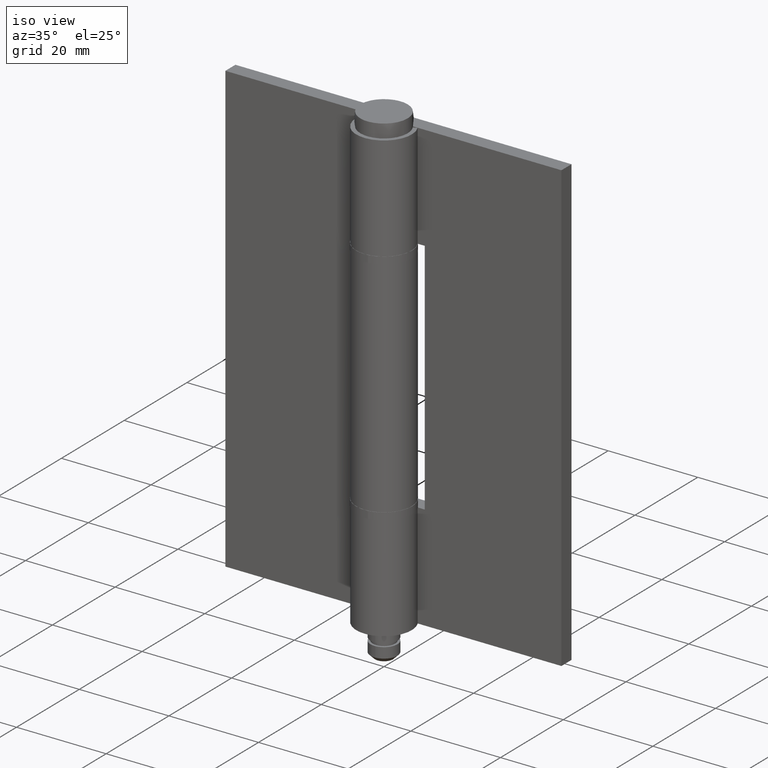
[diagram: clean part render]
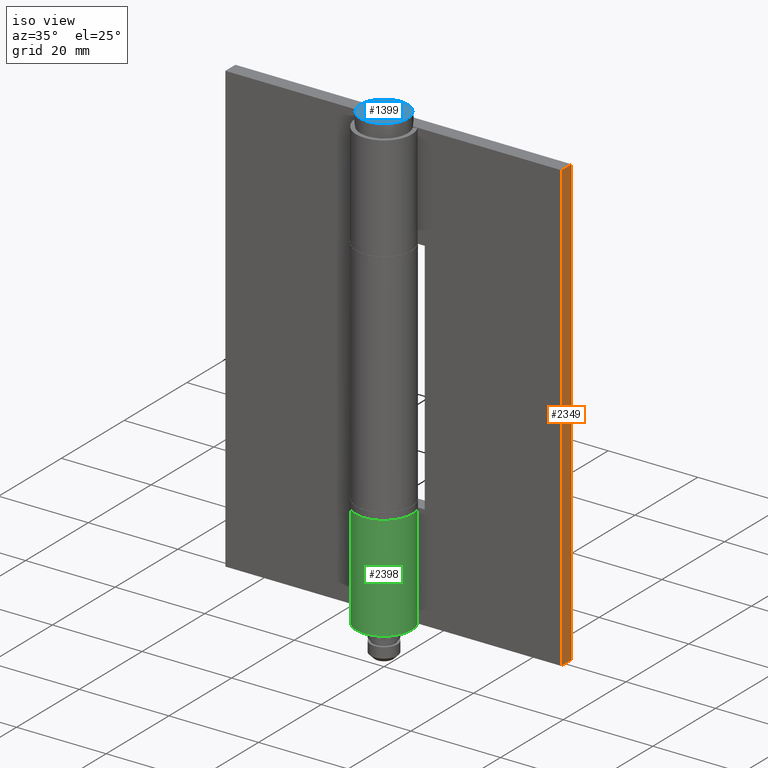
[diagram: same view with three faces highlighted in distinct colors, each labeled with its STEP entity id]
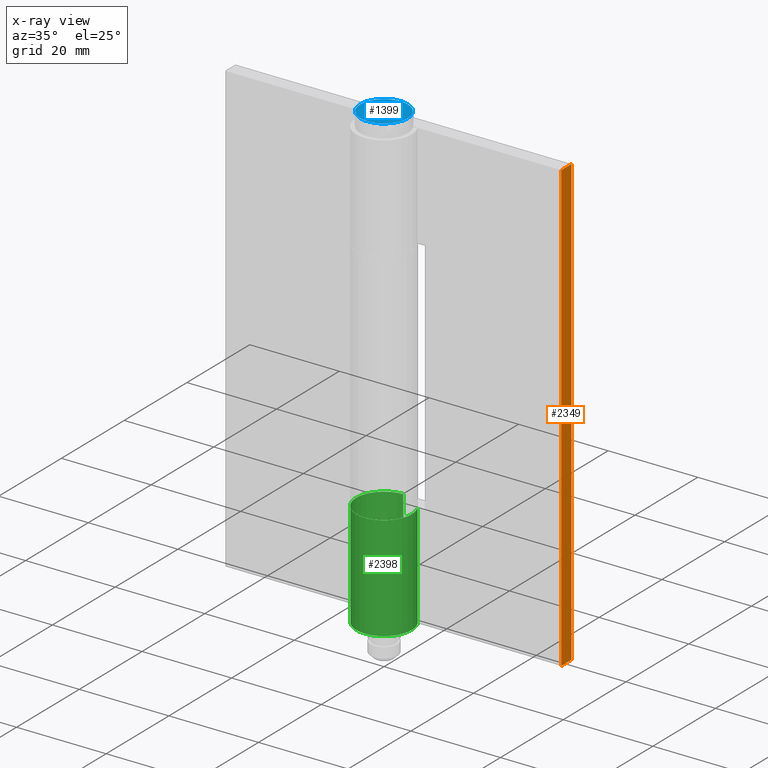
[diagram: x-ray of the same camera — body ghosted, the three highlighted faces saturated]
A machine part, iso view with three faces highlighted in distinct colors.
The next image is the same camera in x-ray (body ghosted, the three faces saturated) — at least one of them is partly hidden behind the body in this view.
Their STEP definitions:

[orange] entity #2349 — the highlighted face is a freeform B-spline surface patch.
#2071=CARTESIAN_POINT('',(37.500000000000000,6.200001000000000,0.0));
#2072=VERTEX_POINT('',#2071);
#2078=CARTESIAN_POINT('',(37.500000000000000,3.0,0.0));
#2079=VERTEX_POINT('',#2078);
#2080=CARTESIAN_POINT('',(37.500000000000000,6.200001000000000,0.0));
#2081=CARTESIAN_POINT('',(37.500000000000000,3.0,0.0));
#2082=QUASI_UNIFORM_CURVE('',1,(#2080,#2081),.UNSPECIFIED.,.F.,.U.);
#2083=EDGE_CURVE('',#2072,#2079,#2082,.T.);
#2149=CARTESIAN_POINT('',(37.500000000000000,6.200001000000000,99.999992999999805));
#2150=VERTEX_POINT('',#2149);
#2205=CARTESIAN_POINT('',(37.500000000000000,3.0,99.999992999999805));
#2206=VERTEX_POINT('',#2205);
#2212=CARTESIAN_POINT('',(37.500000000000000,6.200001000000000,99.999992999999805));
#2213=CARTESIAN_POINT('',(37.500000000000000,3.0,99.999992999999805));
#2214=QUASI_UNIFORM_CURVE('',1,(#2212,#2213),.UNSPECIFIED.,.F.,.U.);
#2215=EDGE_CURVE('',#2150,#2206,#2214,.T.);
#2320=CARTESIAN_POINT('',(37.500000000000000,3.0,99.999992999999805));
#2321=CARTESIAN_POINT('',(37.500000000000000,3.0,0.0));
#2322=QUASI_UNIFORM_CURVE('',1,(#2320,#2321),.UNSPECIFIED.,.F.,.U.);
#2323=EDGE_CURVE('',#2206,#2079,#2322,.T.);
#2334=CARTESIAN_POINT('',(37.500000000000000,2.840159967684873,104.994992456530400));
#2335=CARTESIAN_POINT('',(37.500000000000000,2.840159967684873,-4.995002138739424));
#2336=CARTESIAN_POINT('',(37.500000000000000,6.359840889263936,104.994992456530400));
#2337=CARTESIAN_POINT('',(37.500000000000000,6.359840889263936,-4.995002138739424));
#2338=B_SPLINE_SURFACE_WITH_KNOTS('',1,1,((#2334,#2336),(#2335,#2337)),.UNSPECIFIED.,.F.,.F.,.U.,(2,2),(2,2),(0.0,109.989994595269910),(0.0,3.519680921579062),.UNSPECIFIED.);
#2339=ORIENTED_EDGE('',*,*,#2083,.F.);
#2340=CARTESIAN_POINT('',(37.500000000000000,6.200001000000000,99.999992999999805));
#2341=CARTESIAN_POINT('',(37.500000000000000,6.200001000000000,0.0));
#2342=QUASI_UNIFORM_CURVE('',1,(#2340,#2341),.UNSPECIFIED.,.F.,.U.);
#2343=EDGE_CURVE('',#2150,#2072,#2342,.T.);
#2344=ORIENTED_EDGE('',*,*,#2343,.F.);
#2345=ORIENTED_EDGE('',*,*,#2215,.T.);
#2346=ORIENTED_EDGE('',*,*,#2323,.T.);
#2347=EDGE_LOOP('',(#2339,#2344,#2345,#2346));
#2348=FACE_OUTER_BOUND('',#2347,.T.);
#2349=ADVANCED_FACE('',(#2348),#2338,.T.);

[blue] entity #1399 — the highlighted face is a freeform B-spline surface patch.
#1349=CARTESIAN_POINT('',(-5.291502599401650,0.0,102.999993080175000));
#1350=VERTEX_POINT('',#1349);
#1351=CARTESIAN_POINT('',(5.291502599401650,0.0,102.999993080175000));
#1352=VERTEX_POINT('',#1351);
#1353=CARTESIAN_POINT('',(-5.291502599401650,0.0,102.999993080175000));
#1354=CARTESIAN_POINT('',(-5.291502599401650,5.291502599401650,102.999993080175000));
#1355=CARTESIAN_POINT('',(0.0,5.291502599401650,102.999993080175000));
#1356=CARTESIAN_POINT('',(5.291502599401650,5.291502599401650,102.999993080175000));
#1357=CARTESIAN_POINT('',(5.291502599401650,0.0,102.999993080175000));
#1365=(BOUNDED_CURVE()B_SPLINE_CURVE(2,(#1353,#1354,#1355,#1356,#1357),.UNSPECIFIED.,.F.,.U.)B_SPLINE_CURVE_WITH_KNOTS((3,2,3),(0.0,0.250000000000000,0.500000000000000),.UNSPECIFIED.)CURVE()GEOMETRIC_REPRESENTATION_ITEM()RATIONAL_B_SPLINE_CURVE((1.0,0.707106781186548,1.0,0.707106781186548,1.0))REPRESENTATION_ITEM(''));
#1366=EDGE_CURVE('',#1350,#1352,#1365,.T.);
#1368=CARTESIAN_POINT('',(5.291502599401650,0.0,102.999993080175000));
#1369=CARTESIAN_POINT('',(5.291502599401650,-5.291502599401650,102.999993080175000));
#1370=CARTESIAN_POINT('',(0.0,-5.291502599401650,102.999993080175000));
#1371=CARTESIAN_POINT('',(-5.291502599401650,-5.291502599401650,102.999993080175000));
#1372=CARTESIAN_POINT('',(-5.291502599401650,0.0,102.999993080175000));
#1380=(BOUNDED_CURVE()B_SPLINE_CURVE(2,(#1368,#1369,#1370,#1371,#1372),.UNSPECIFIED.,.F.,.U.)B_SPLINE_CURVE_WITH_KNOTS((3,2,3),(0.500000000000000,0.750000000000000,1.0),.UNSPECIFIED.)CURVE()GEOMETRIC_REPRESENTATION_ITEM()RATIONAL_B_SPLINE_CURVE((1.0,0.707106781186548,1.0,0.707106781186548,1.0))REPRESENTATION_ITEM(''));
#1381=EDGE_CURVE('',#1352,#1350,#1380,.T.);
#1390=CARTESIAN_POINT('',(5.820123589224275,-5.820123589224129,102.999993040087400));
#1391=CARTESIAN_POINT('',(-5.820123967702034,-5.820123589224129,102.999993040087400));
#1392=CARTESIAN_POINT('',(5.820123589224275,5.820123967701887,102.999993040087400));
#1393=CARTESIAN_POINT('',(-5.820123967702034,5.820123967701887,102.999993040087400));
#1394=B_SPLINE_SURFACE_WITH_KNOTS('',1,1,((#1390,#1392),(#1391,#1393)),.UNSPECIFIED.,.F.,.F.,.U.,(2,2),(2,2),(0.0,11.640247556926310),(0.0,11.640247556926020),.UNSPECIFIED.);
#1395=ORIENTED_EDGE('',*,*,#1381,.F.);
#1396=ORIENTED_EDGE('',*,*,#1366,.F.);
#1397=EDGE_LOOP('',(#1395,#1396));
#1398=FACE_OUTER_BOUND('',#1397,.T.);
#1399=ADVANCED_FACE('',(#1398),#1394,.F.);

[green] entity #2398 — the highlighted face is a freeform B-spline surface patch.
#1909=CARTESIAN_POINT('',(-1.138884E-015,6.200000000000000,23.400001999999802));
#1910=VERTEX_POINT('',#1909);
#1916=CARTESIAN_POINT('',(5.453210063806460,2.950000000000000,23.400001999999802));
#1917=VERTEX_POINT('',#1916);
#1918=CARTESIAN_POINT('',(0.0,6.200000000000000,23.400001999999802));
#1919=CARTESIAN_POINT('',(-4.723388059690951,6.199999999999998,23.400001999999791));
#1920=CARTESIAN_POINT('',(-5.977476779354326,1.646138315051269,23.400001999999802));
#1921=CARTESIAN_POINT('',(-7.231565499017704,-2.907723369897465,23.400001999999791));
#1922=CARTESIAN_POINT('',(-3.174114049620778,-5.325880208941991,23.400001999999802));
#1923=CARTESIAN_POINT('',(0.883337399776151,-7.744037047986520,23.400001999999791));
#1924=CARTESIAN_POINT('',(4.291982987927457,-4.474246532248898,23.400001999999802));
#1925=CARTESIAN_POINT('',(7.700628576078759,-1.204456016511282,23.400001999999791));
#1926=CARTESIAN_POINT('',(5.453210063806457,2.949999999999995,23.400001999999802));
#1934=(BOUNDED_CURVE()B_SPLINE_CURVE(2,(#1918,#1919,#1920,#1921,#1922,#1923,#1924,#1925,#1926),.UNSPECIFIED.,.F.,.U.)B_SPLINE_CURVE_WITH_KNOTS((3,2,2,2,3),(0.0,0.250000000000000,0.500000000000000,0.750000000000000,1.0),.UNSPECIFIED.)CURVE()GEOMETRIC_REPRESENTATION_ITEM()RATIONAL_B_SPLINE_CURVE((1.0,0.795457786386864,1.0,0.795457786386864,1.0,0.795457786386864,1.0,0.795457786386864,1.0))REPRESENTATION_ITEM(''));
#1935=EDGE_CURVE('',#1910,#1917,#1934,.T.);
#2069=CARTESIAN_POINT('',(-1.138884E-015,6.200000000000000,0.0));
#2070=VERTEX_POINT('',#2069);
#2113=CARTESIAN_POINT('',(5.453210063806460,2.950000000000000,0.0));
#2114=VERTEX_POINT('',#2113);
#2120=CARTESIAN_POINT('',(5.453210063806456,2.949999999999999,0.0));
#2121=CARTESIAN_POINT('',(7.700628576078760,-1.204456016511281,0.0));
#2122=CARTESIAN_POINT('',(4.291982987927456,-4.474246532248899,0.0));
#2123=CARTESIAN_POINT('',(0.883337399776152,-7.744037047986519,0.0));
#2124=CARTESIAN_POINT('',(-3.174114049620775,-5.325880208941993,0.0));
#2125=CARTESIAN_POINT('',(-7.231565499017706,-2.907723369897465,0.0));
#2126=CARTESIAN_POINT('',(-5.977476779354325,1.646138315051270,0.0));
#2127=CARTESIAN_POINT('',(-4.723388059690947,6.200000000000001,0.0));
#2128=CARTESIAN_POINT('',(0.0,6.200000000000000,0.0));
#2136=(BOUNDED_CURVE()B_SPLINE_CURVE(2,(#2120,#2121,#2122,#2123,#2124,#2125,#2126,#2127,#2128),.UNSPECIFIED.,.F.,.U.)B_SPLINE_CURVE_WITH_KNOTS((3,2,2,2,3),(0.0,0.250000000000000,0.500000000000000,0.750000000000000,1.0),.UNSPECIFIED.)CURVE()GEOMETRIC_REPRESENTATION_ITEM()RATIONAL_B_SPLINE_CURVE((1.0,0.795457786386864,1.0,0.795457786386864,1.0,0.795457786386864,1.0,0.795457786386864,1.0))REPRESENTATION_ITEM(''));
#2137=EDGE_CURVE('',#2114,#2070,#2136,.T.);
#2263=CARTESIAN_POINT('',(5.453210063806460,2.950000000000000,23.400001999999802));
#2264=CARTESIAN_POINT('',(5.453210063806460,2.950000000000000,0.0));
#2265=QUASI_UNIFORM_CURVE('',1,(#2263,#2264),.UNSPECIFIED.,.F.,.U.);
#2266=EDGE_CURVE('',#1917,#2114,#2265,.T.);
#2360=CARTESIAN_POINT('',(-1.138884E-015,6.200000000000000,23.400001999999802));
#2361=CARTESIAN_POINT('',(-1.138884E-015,6.200000000000000,0.0));
#2362=QUASI_UNIFORM_CURVE('',1,(#2360,#2361),.UNSPECIFIED.,.F.,.U.);
#2363=EDGE_CURVE('',#1910,#2070,#2362,.T.);
#2370=CARTESIAN_POINT('',(0.225907285362667,6.195882979722908,23.985002049999800));
#2371=CARTESIAN_POINT('',(0.225907285362667,6.195882979722908,-0.599625051249998));
#2372=CARTESIAN_POINT('',(-7.380025960730202,6.473201924883384,23.985002049999789));
#2373=CARTESIAN_POINT('',(-7.380025960730202,6.473201924883384,-0.599625051249998));
#2374=CARTESIAN_POINT('',(-6.113562312566590,-1.031676233304519,23.985002049999800));
#2375=CARTESIAN_POINT('',(-6.113562312566590,-1.031676233304519,-0.599625051249998));
#2376=CARTESIAN_POINT('',(-4.847098664402979,-8.536554391492423,23.985002049999789));
#2377=CARTESIAN_POINT('',(-4.847098664402979,-8.536554391492423,-0.599625051249998));
#2378=CARTESIAN_POINT('',(2.246632172933047,-5.778636853059906,23.985002049999800));
#2379=CARTESIAN_POINT('',(2.246632172933047,-5.778636853059906,-0.599625051249998));
#2380=CARTESIAN_POINT('',(9.340363010269071,-3.020719314627390,23.985002049999789));
#2381=CARTESIAN_POINT('',(9.340363010269071,-3.020719314627390,-0.599625051249998));
#2382=CARTESIAN_POINT('',(5.204945304699445,3.368760064932965,23.985002049999800));
#2383=CARTESIAN_POINT('',(5.204945304699445,3.368760064932965,-0.599625051249998));
#2391=(BOUNDED_SURFACE()B_SPLINE_SURFACE(1,2,((#2370,#2372,#2374,#2376,#2378,#2380,#2382),(#2371,#2373,#2375,#2377,#2379,#2381,#2383)),.UNSPECIFIED.,.F.,.F.,.U.)B_SPLINE_SURFACE_WITH_KNOTS((2,2),(3,2,2,3),(0.0,24.584627101249801),(0.0,11.784747576008680,23.569495152017360,35.354242728026037),.UNSPECIFIED.)GEOMETRIC_REPRESENTATION_ITEM()RATIONAL_B_SPLINE_SURFACE(((1.0,0.631578351302498,1.0,0.631578351302498,1.0,0.631578351302498,1.0),(1.0,0.631578351302498,1.0,0.631578351302498,1.0,0.631578351302498,1.0)))REPRESENTATION_ITEM('')SURFACE());
#2392=ORIENTED_EDGE('',*,*,#2266,.F.);
#2393=ORIENTED_EDGE('',*,*,#1935,.F.);
#2394=ORIENTED_EDGE('',*,*,#2363,.T.);
#2395=ORIENTED_EDGE('',*,*,#2137,.F.);
#2396=EDGE_LOOP('',(#2392,#2393,#2394,#2395));
#2397=FACE_OUTER_BOUND('',#2396,.T.);
#2398=ADVANCED_FACE('',(#2397),#2391,.T.);